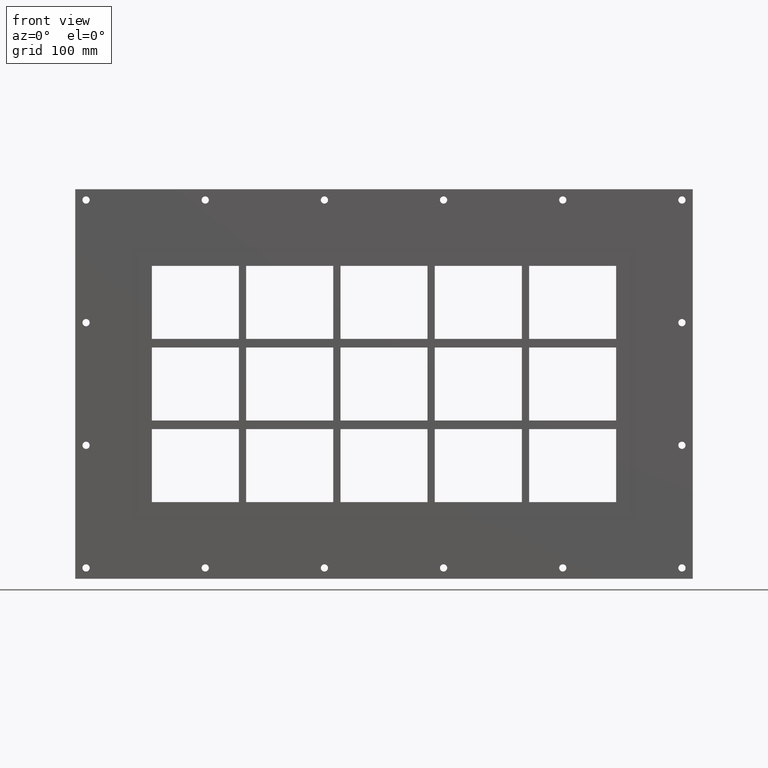
[diagram: clean part render]
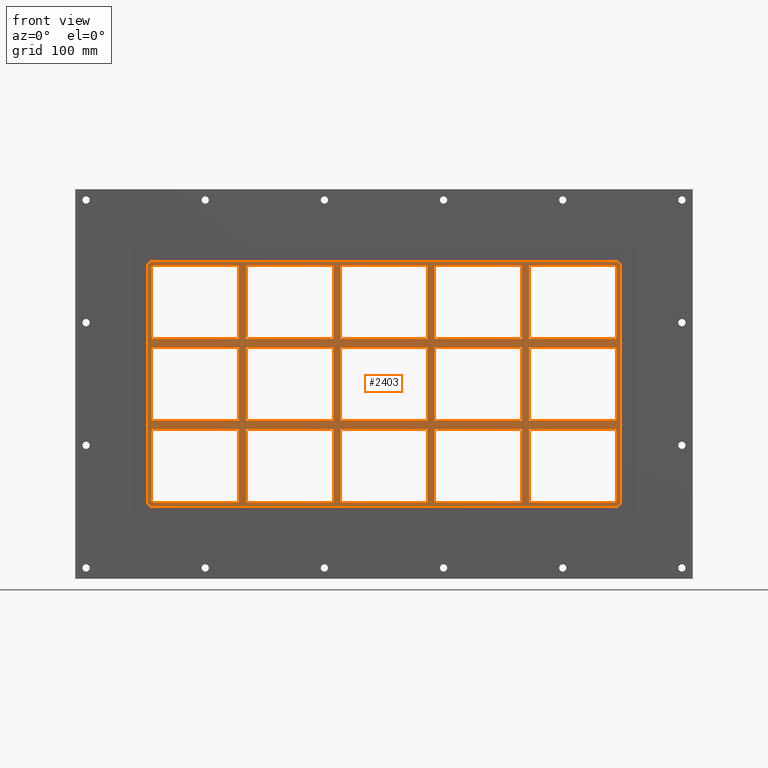
[diagram: same view with one face highlighted and labeled with its STEP entity id]
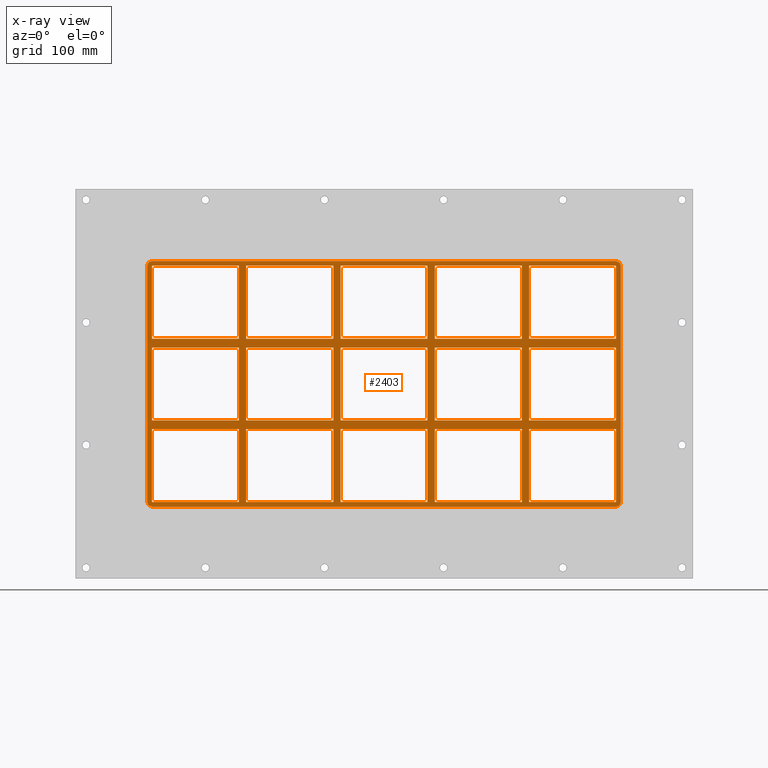
[diagram: x-ray of the same camera — body ghosted, the highlighted face saturated]
A machine part, front view. The second image highlights one B-rep face of the part: STEP entity #2403.
The next image is the same camera in x-ray: the body ghosted, the highlighted face saturated — about 0% of this face is hidden behind the body in this view.
In plain terms, the highlighted planar face has unit normal (0, 1, 0).
Its self-contained STEP definition (entity closure, byte-faithful):
#521=CARTESIAN_POINT('',(-200.75000000000148,-3.0,50.499999999990628));
#522=VERTEX_POINT('',#521);
#531=CARTESIAN_POINT('',(-321.24999999999989,-3.0,50.499999999990628));
#532=VERTEX_POINT('',#531);
#533=CARTESIAN_POINT('',(-200.75000000000148,-3.0,50.499999999990649));
#534=DIRECTION('',(-1.0,0.0,0.0));
#535=VECTOR('',#534,120.49999999999841);
#536=LINE('',#533,#535);
#537=EDGE_CURVE('',#522,#532,#536,.T.);
#561=CARTESIAN_POINT('',(-70.250000000001549,-3.0,50.499999999990671));
#562=VERTEX_POINT('',#561);
#571=CARTESIAN_POINT('',(-190.75000000000728,-3.0,50.499999999990649));
#572=VERTEX_POINT('',#571);
#573=CARTESIAN_POINT('',(-70.250000000001535,-3.0,50.499999999990671));
#574=DIRECTION('',(-1.0,0.0,0.0));
#575=VECTOR('',#574,120.50000000000574);
#576=LINE('',#573,#575);
#577=EDGE_CURVE('',#562,#572,#576,.T.);
#601=CARTESIAN_POINT('',(60.249999999998529,-3.0,50.499999999990699));
#602=VERTEX_POINT('',#601);
#611=CARTESIAN_POINT('',(-60.250000000007304,-3.0,50.499999999990678));
#612=VERTEX_POINT('',#611);
#613=CARTESIAN_POINT('',(60.249999999998522,-3.0,50.499999999990699));
#614=DIRECTION('',(-1.0,0.0,0.0));
#615=VECTOR('',#614,120.5000000000058);
#616=LINE('',#613,#615);
#617=EDGE_CURVE('',#602,#612,#616,.T.);
#643=CARTESIAN_POINT('',(200.74999999999278,-3.0,50.499999999990727));
#644=VERTEX_POINT('',#643);
#659=CARTESIAN_POINT('',(321.25,-3.0,50.499999999990749));
#660=VERTEX_POINT('',#659);
#667=CARTESIAN_POINT('',(321.25,-3.0,50.499999999990749));
#668=DIRECTION('',(-1.0,0.0,0.0));
#669=VECTOR('',#668,120.50000000000722);
#670=LINE('',#667,#669);
#671=EDGE_CURVE('',#660,#644,#670,.T.);
#681=CARTESIAN_POINT('',(190.74999999999852,-3.0,50.499999999990727));
#682=VERTEX_POINT('',#681);
#691=CARTESIAN_POINT('',(70.249999999992738,-3.0,50.499999999990706));
#692=VERTEX_POINT('',#691);
#693=CARTESIAN_POINT('',(190.74999999999852,-3.0,50.49999999999072));
#694=DIRECTION('',(-1.0,0.0,0.0));
#695=VECTOR('',#694,120.5000000000058);
#696=LINE('',#693,#695);
#697=EDGE_CURVE('',#682,#692,#696,.T.);
#723=CARTESIAN_POINT('',(-200.75000000000148,-3.0,62.499999999999893));
#724=VERTEX_POINT('',#723);
#739=CARTESIAN_POINT('',(-321.24999999999989,-3.0,62.499999999999893));
#740=VERTEX_POINT('',#739);
#747=CARTESIAN_POINT('',(-321.24999999999989,-3.0,62.499999999999893));
#748=DIRECTION('',(1.0,0.0,0.0));
#749=VECTOR('',#748,120.49999999999838);
#750=LINE('',#747,#749);
#751=EDGE_CURVE('',#740,#724,#750,.T.);
#761=CARTESIAN_POINT('',(200.74999999999278,-3.0,62.499999999999893));
#762=VERTEX_POINT('',#761);
#771=CARTESIAN_POINT('',(321.25000000000006,-3.0,62.499999999999893));
#772=VERTEX_POINT('',#771);
#773=CARTESIAN_POINT('',(200.74999999999272,-3.0,62.499999999999893));
#774=DIRECTION('',(1.0,0.0,0.0));
#775=VECTOR('',#774,120.50000000000739);
#776=LINE('',#773,#775);
#777=EDGE_CURVE('',#762,#772,#776,.T.);
#803=CARTESIAN_POINT('',(-70.250000000001478,-3.0,62.499999999999893));
#804=VERTEX_POINT('',#803);
#819=CARTESIAN_POINT('',(-190.75000000000728,-3.0,62.499999999999893));
#820=VERTEX_POINT('',#819);
#827=CARTESIAN_POINT('',(-190.7500000000073,-3.0,62.499999999999893));
#828=DIRECTION('',(1.0,0.0,0.0));
#829=VECTOR('',#828,120.5000000000058);
#830=LINE('',#827,#829);
#831=EDGE_CURVE('',#820,#804,#830,.T.);
#843=CARTESIAN_POINT('',(60.249999999998494,-3.0,62.499999999999893));
#844=VERTEX_POINT('',#843);
#859=CARTESIAN_POINT('',(-60.250000000007269,-3.0,62.499999999999893));
#860=VERTEX_POINT('',#859);
#867=CARTESIAN_POINT('',(-60.250000000007276,-3.0,62.499999999999893));
#868=DIRECTION('',(1.0,0.0,0.0));
#869=VECTOR('',#868,120.50000000000574);
#870=LINE('',#867,#869);
#871=EDGE_CURVE('',#860,#844,#870,.T.);
#883=CARTESIAN_POINT('',(190.74999999999852,-3.0,62.499999999999893));
#884=VERTEX_POINT('',#883);
#899=CARTESIAN_POINT('',(70.249999999992738,-3.0,62.499999999999893));
#900=VERTEX_POINT('',#899);
#907=CARTESIAN_POINT('',(70.249999999992724,-3.0,62.499999999999893));
#908=DIRECTION('',(1.0,0.0,0.0));
#909=VECTOR('',#908,120.5000000000058);
#910=LINE('',#907,#909);
#911=EDGE_CURVE('',#900,#884,#910,.T.);
#930=CARTESIAN_POINT('',(-321.25000000000011,-3.0,163.5));
#931=VERTEX_POINT('',#930);
#938=CARTESIAN_POINT('',(-321.25000000000006,-3.0,62.499999999999886));
#939=DIRECTION('',(0.0,0.0,1.0));
#940=VECTOR('',#939,101.00000000000014);
#941=LINE('',#938,#940);
#942=EDGE_CURVE('',#740,#931,#941,.T.);
#961=CARTESIAN_POINT('',(321.25000000000006,-3.0,-50.500000000000114));
#962=VERTEX_POINT('',#961);
#969=CARTESIAN_POINT('',(321.25000000000011,-3.0,50.499999999990749));
#970=DIRECTION('',(0.0,0.0,-1.0));
#971=VECTOR('',#970,100.99999999999086);
#972=LINE('',#969,#971);
#973=EDGE_CURVE('',#660,#962,#972,.T.);
#984=CARTESIAN_POINT('',(321.25000000000011,-3.0,163.5));
#985=VERTEX_POINT('',#984);
#986=CARTESIAN_POINT('',(321.25000000000011,-3.0,163.5));
#987=DIRECTION('',(0.0,0.0,-1.0));
#988=VECTOR('',#987,101.00000000000011);
#989=LINE('',#986,#988);
#990=EDGE_CURVE('',#985,#772,#989,.T.);
#1015=CARTESIAN_POINT('',(190.74999999999852,-3.0,163.5));
#1016=VERTEX_POINT('',#1015);
#1017=CARTESIAN_POINT('',(190.74999999999855,-3.0,62.499999999999915));
#1018=DIRECTION('',(0.0,0.0,1.0));
#1019=VECTOR('',#1018,101.00000000000009);
#1020=LINE('',#1017,#1019);
#1021=EDGE_CURVE('',#884,#1016,#1020,.T.);
#1054=CARTESIAN_POINT('',(200.74999999999278,-3.0,163.5));
#1055=VERTEX_POINT('',#1054);
#1062=CARTESIAN_POINT('',(200.74999999999278,-3.0,163.5));
#1063=DIRECTION('',(0.0,0.0,-1.0));
#1064=VECTOR('',#1063,101.00000000000011);
#1065=LINE('',#1062,#1064);
#1066=EDGE_CURVE('',#1055,#762,#1065,.T.);
#1077=CARTESIAN_POINT('',(60.249999999998494,-3.0,163.5));
#1078=VERTEX_POINT('',#1077);
#1079=CARTESIAN_POINT('',(60.249999999998515,-3.0,62.499999999999915));
#1080=DIRECTION('',(0.0,0.0,1.0));
#1081=VECTOR('',#1080,101.00000000000009);
#1082=LINE('',#1079,#1081);
#1083=EDGE_CURVE('',#844,#1078,#1082,.T.);
#1116=CARTESIAN_POINT('',(70.249999999992738,-3.0,163.5));
#1117=VERTEX_POINT('',#1116);
#1124=CARTESIAN_POINT('',(70.249999999992738,-3.0,163.5));
#1125=DIRECTION('',(0.0,0.0,-1.0));
#1126=VECTOR('',#1125,101.00000000000011);
#1127=LINE('',#1124,#1126);
#1128=EDGE_CURVE('',#1117,#900,#1127,.T.);
#1139=CARTESIAN_POINT('',(-70.250000000001506,-3.0,163.5));
#1140=VERTEX_POINT('',#1139);
#1141=CARTESIAN_POINT('',(-70.250000000001492,-3.0,62.499999999999915));
#1142=DIRECTION('',(0.0,0.0,1.0));
#1143=VECTOR('',#1142,101.00000000000009);
#1144=LINE('',#1141,#1143);
#1145=EDGE_CURVE('',#804,#1140,#1144,.T.);
#1178=CARTESIAN_POINT('',(-60.250000000007269,-3.0,163.5));
#1179=VERTEX_POINT('',#1178);
#1186=CARTESIAN_POINT('',(-60.250000000007269,-3.0,163.5));
#1187=DIRECTION('',(0.0,0.0,-1.0));
#1188=VECTOR('',#1187,101.00000000000011);
#1189=LINE('',#1186,#1188);
#1190=EDGE_CURVE('',#1179,#860,#1189,.T.);
#1201=CARTESIAN_POINT('',(-200.75000000000153,-3.0,163.5));
#1202=VERTEX_POINT('',#1201);
#1203=CARTESIAN_POINT('',(-200.75000000000151,-3.0,62.499999999999915));
#1204=DIRECTION('',(0.0,0.0,1.0));
#1205=VECTOR('',#1204,101.00000000000009);
#1206=LINE('',#1203,#1205);
#1207=EDGE_CURVE('',#724,#1202,#1206,.T.);
#1240=CARTESIAN_POINT('',(-200.75000000000145,-3.0,-50.500000000000114));
#1241=VERTEX_POINT('',#1240);
#1248=CARTESIAN_POINT('',(-200.75000000000148,-3.0,-50.500000000000099));
#1249=DIRECTION('',(0.0,0.0,1.0));
#1250=VECTOR('',#1249,100.99999999999075);
#1251=LINE('',#1248,#1250);
#1252=EDGE_CURVE('',#1241,#522,#1251,.T.);
#1271=CARTESIAN_POINT('',(-190.75000000000728,-3.0,163.5));
#1272=VERTEX_POINT('',#1271);
#1279=CARTESIAN_POINT('',(-190.75000000000728,-3.0,163.5));
#1280=DIRECTION('',(0.0,0.0,-1.0));
#1281=VECTOR('',#1280,101.00000000000011);
#1282=LINE('',#1279,#1281);
#1283=EDGE_CURVE('',#1272,#820,#1282,.T.);
#1707=CARTESIAN_POINT('',(190.74999999999858,-3.0,-50.500000000000114));
#1708=VERTEX_POINT('',#1707);
#1715=CARTESIAN_POINT('',(190.74999999999858,-3.0,-50.500000000000099));
#1716=DIRECTION('',(0.0,0.0,1.0));
#1717=VECTOR('',#1716,100.99999999999083);
#1718=LINE('',#1715,#1717);
#1719=EDGE_CURVE('',#1708,#682,#1718,.T.);
#1729=CARTESIAN_POINT('',(190.74999999999858,-3.0,-62.500000000009273));
#1730=VERTEX_POINT('',#1729);
#1738=CARTESIAN_POINT('',(190.74999999999861,-3.0,-163.5));
#1739=VERTEX_POINT('',#1738);
#1746=CARTESIAN_POINT('',(190.74999999999861,-3.0,-163.5));
#1747=DIRECTION('',(0.0,0.0,1.0));
#1748=VECTOR('',#1747,100.99999999999073);
#1749=LINE('',#1746,#1748);
#1750=EDGE_CURVE('',#1739,#1730,#1749,.T.);
#1761=CARTESIAN_POINT('',(200.74999999999278,-3.0,-50.500000000000114));
#1762=VERTEX_POINT('',#1761);
#1763=CARTESIAN_POINT('',(200.74999999999278,-3.0,50.49999999999072));
#1764=DIRECTION('',(0.0,0.0,-1.0));
#1765=VECTOR('',#1764,100.99999999999083);
#1766=LINE('',#1763,#1765);
#1767=EDGE_CURVE('',#644,#1762,#1766,.T.);
#1784=CARTESIAN_POINT('',(200.74999999999278,-3.0,-62.500000000009273));
#1785=VERTEX_POINT('',#1784);
#1792=CARTESIAN_POINT('',(200.74999999999278,-3.0,-163.49999999998428));
#1793=VERTEX_POINT('',#1792);
#1794=CARTESIAN_POINT('',(200.74999999999278,-3.0,-62.500000000009294));
#1795=DIRECTION('',(0.0,0.0,-1.0));
#1796=VECTOR('',#1795,100.99999999997496);
#1797=LINE('',#1794,#1796);
#1798=EDGE_CURVE('',#1785,#1793,#1797,.T.);
#1817=CARTESIAN_POINT('',(60.249999999998536,-3.0,-50.500000000000114));
#1818=VERTEX_POINT('',#1817);
#1825=CARTESIAN_POINT('',(60.249999999998543,-3.0,-50.500000000000099));
#1826=DIRECTION('',(0.0,0.0,1.0));
#1827=VECTOR('',#1826,100.99999999999081);
#1828=LINE('',#1825,#1827);
#1829=EDGE_CURVE('',#1818,#602,#1828,.T.);
#1839=CARTESIAN_POINT('',(60.24999999999855,-3.0,-62.500000000009308));
#1840=VERTEX_POINT('',#1839);
#1848=CARTESIAN_POINT('',(60.249999999998565,-3.0,-163.5));
#1849=VERTEX_POINT('',#1848);
#1856=CARTESIAN_POINT('',(60.249999999998565,-3.0,-163.5));
#1857=DIRECTION('',(0.0,0.0,1.0));
#1858=VECTOR('',#1857,100.99999999999071);
#1859=LINE('',#1856,#1858);
#1860=EDGE_CURVE('',#1849,#1840,#1859,.T.);
#1871=CARTESIAN_POINT('',(70.249999999992738,-3.0,-50.500000000000114));
#1872=VERTEX_POINT('',#1871);
#1873=CARTESIAN_POINT('',(70.249999999992738,-3.0,50.499999999990678));
#1874=DIRECTION('',(0.0,0.0,-1.0));
#1875=VECTOR('',#1874,100.99999999999079);
#1876=LINE('',#1873,#1875);
#1877=EDGE_CURVE('',#692,#1872,#1876,.T.);
#1894=CARTESIAN_POINT('',(70.249999999992738,-3.0,-62.500000000009273));
#1895=VERTEX_POINT('',#1894);
#1902=CARTESIAN_POINT('',(70.249999999992738,-3.0,-163.49999999998428));
#1903=VERTEX_POINT('',#1902);
#1904=CARTESIAN_POINT('',(70.249999999992738,-3.0,-62.500000000009294));
#1905=DIRECTION('',(0.0,0.0,-1.0));
#1906=VECTOR('',#1905,100.99999999997496);
#1907=LINE('',#1904,#1906);
#1908=EDGE_CURVE('',#1895,#1903,#1907,.T.);
#1927=CARTESIAN_POINT('',(-70.250000000001464,-3.0,-50.500000000000114));
#1928=VERTEX_POINT('',#1927);
#1935=CARTESIAN_POINT('',(-70.250000000001478,-3.0,-50.500000000000099));
#1936=DIRECTION('',(0.0,0.0,1.0));
#1937=VECTOR('',#1936,100.99999999999078);
#1938=LINE('',#1935,#1937);
#1939=EDGE_CURVE('',#1928,#562,#1938,.T.);
#1949=CARTESIAN_POINT('',(-70.250000000001464,-3.0,-62.500000000009322));
#1950=VERTEX_POINT('',#1949);
#1958=CARTESIAN_POINT('',(-70.25000000000145,-3.0,-163.5));
#1959=VERTEX_POINT('',#1958);
#1966=CARTESIAN_POINT('',(-70.25000000000145,-3.0,-163.5));
#1967=DIRECTION('',(0.0,0.0,1.0));
#1968=VECTOR('',#1967,100.99999999999069);
#1969=LINE('',#1966,#1968);
#1970=EDGE_CURVE('',#1959,#1950,#1969,.T.);
#1981=CARTESIAN_POINT('',(-60.250000000007269,-3.0,-50.500000000000114));
#1982=VERTEX_POINT('',#1981);
#1983=CARTESIAN_POINT('',(-60.250000000007269,-3.0,50.499999999990663));
#1984=DIRECTION('',(0.0,0.0,-1.0));
#1985=VECTOR('',#1984,100.99999999999078);
#1986=LINE('',#1983,#1985);
#1987=EDGE_CURVE('',#612,#1982,#1986,.T.);
#2004=CARTESIAN_POINT('',(-60.250000000007269,-3.0,-62.500000000009308));
#2005=VERTEX_POINT('',#2004);
#2012=CARTESIAN_POINT('',(-60.250000000007269,-3.0,-163.49999999998428));
#2013=VERTEX_POINT('',#2012);
#2014=CARTESIAN_POINT('',(-60.250000000007269,-3.0,-62.500000000009322));
#2015=DIRECTION('',(0.0,0.0,-1.0));
#2016=VECTOR('',#2015,100.99999999997493);
#2017=LINE('',#2014,#2016);
#2018=EDGE_CURVE('',#2005,#2013,#2017,.T.);
#2037=CARTESIAN_POINT('',(-190.75000000000728,-3.0,-163.49999999998428));
#2038=VERTEX_POINT('',#2037);
#2045=CARTESIAN_POINT('',(-70.25000000000145,-3.0,-163.5));
#2046=DIRECTION('',(-1.0,0.0,0.0));
#2047=VECTOR('',#2046,120.5000000000058);
#2048=LINE('',#2045,#2047);
#2049=EDGE_CURVE('',#1959,#2038,#2048,.T.);
#2062=CARTESIAN_POINT('',(60.24999999999855,-3.0,-163.5));
#2063=DIRECTION('',(-1.0,0.0,0.0));
#2064=VECTOR('',#2063,120.50000000000583);
#2065=LINE('',#2062,#2064);
#2066=EDGE_CURVE('',#1849,#2013,#2065,.T.);
#2079=CARTESIAN_POINT('',(190.74999999999861,-3.0,-163.5));
#2080=DIRECTION('',(-1.0,0.0,0.0));
#2081=VECTOR('',#2080,120.50000000000588);
#2082=LINE('',#2079,#2081);
#2083=EDGE_CURVE('',#1739,#1903,#2082,.T.);
#2094=CARTESIAN_POINT('',(321.25000000000011,-3.0,-163.5));
#2095=VERTEX_POINT('',#2094);
#2096=CARTESIAN_POINT('',(321.25000000000011,-3.0,-163.5));
#2097=DIRECTION('',(-1.0,0.0,0.0));
#2098=VECTOR('',#2097,120.50000000000733);
#2099=LINE('',#2096,#2098);
#2100=EDGE_CURVE('',#2095,#1793,#2099,.T.);
#2112=CARTESIAN_POINT('',(-7.489843E-014,-3.0,0.0));
#2113=DIRECTION('',(0.0,1.0,0.0));
#2114=DIRECTION('',(0.0,0.0,1.0));
#2115=AXIS2_PLACEMENT_3D('',#2112,#2113,#2114);
#2116=PLANE('',#2115);
#2117=CARTESIAN_POINT('',(327.24999999999994,-3.0,-163.5));
#2118=VERTEX_POINT('',#2117);
#2119=CARTESIAN_POINT('',(321.25,-3.0,-169.50000000000003));
#2120=VERTEX_POINT('',#2119);
#2121=CARTESIAN_POINT('',(321.25,-3.0,-163.5));
#2122=DIRECTION('',(0.0,1.0,0.0));
#2123=DIRECTION('',(0.707106781186543,0.0,-0.707106781186552));
#2124=AXIS2_PLACEMENT_3D('',#2121,#2122,#2123);
#2125=CIRCLE('',#2124,6.000000000000001);
#2126=EDGE_CURVE('',#2118,#2120,#2125,.T.);
#2127=ORIENTED_EDGE('',*,*,#2126,.F.);
#2128=CARTESIAN_POINT('',(327.24999999999994,-3.0,163.5));
#2129=VERTEX_POINT('',#2128);
#2130=CARTESIAN_POINT('',(327.24999999999994,-3.0,-163.50000000000003));
#2131=DIRECTION('',(0.0,0.0,1.0));
#2132=VECTOR('',#2131,327.0);
#2133=LINE('',#2130,#2132);
#2134=EDGE_CURVE('',#2118,#2129,#2133,.T.);
#2135=ORIENTED_EDGE('',*,*,#2134,.T.);
#2136=CARTESIAN_POINT('',(321.24999999999989,-3.0,169.50000000000003));
#2137=VERTEX_POINT('',#2136);
#2138=CARTESIAN_POINT('',(321.24999999999989,-3.0,163.5));
#2139=DIRECTION('',(0.0,1.0,0.0));
#2140=DIRECTION('',(0.707106781186552,0.0,0.707106781186543));
#2141=AXIS2_PLACEMENT_3D('',#2138,#2139,#2140);
#2142=CIRCLE('',#2141,6.0);
#2143=EDGE_CURVE('',#2137,#2129,#2142,.T.);
#2144=ORIENTED_EDGE('',*,*,#2143,.F.);
#2145=CARTESIAN_POINT('',(-321.25000000000011,-3.0,169.50000000000003));
#2146=VERTEX_POINT('',#2145);
#2147=CARTESIAN_POINT('',(321.24999999999989,-3.0,169.50000000000003));
#2148=DIRECTION('',(-1.0,0.0,0.0));
#2149=VECTOR('',#2148,642.5);
#2150=LINE('',#2147,#2149);
#2151=EDGE_CURVE('',#2137,#2146,#2150,.T.);
#2152=ORIENTED_EDGE('',*,*,#2151,.T.);
#2153=CARTESIAN_POINT('',(-327.25000000000011,-3.0,163.5));
#2154=VERTEX_POINT('',#2153);
#2155=CARTESIAN_POINT('',(-321.25000000000011,-3.0,163.5));
#2156=DIRECTION('',(0.0,1.0,0.0));
#2157=DIRECTION('',(-0.707106781186543,0.0,0.707106781186552));
#2158=AXIS2_PLACEMENT_3D('',#2155,#2156,#2157);
#2159=CIRCLE('',#2158,6.000000000000001);
#2160=EDGE_CURVE('',#2154,#2146,#2159,.T.);
#2161=ORIENTED_EDGE('',*,*,#2160,.F.);
#2162=CARTESIAN_POINT('',(-327.25000000000011,-3.0,-163.5));
#2163=VERTEX_POINT('',#2162);
#2164=CARTESIAN_POINT('',(-327.25000000000011,-3.0,163.50000000000003));
#2165=DIRECTION('',(0.0,0.0,-1.0));
#2166=VECTOR('',#2165,327.0);
#2167=LINE('',#2164,#2166);
#2168=EDGE_CURVE('',#2154,#2163,#2167,.T.);
#2169=ORIENTED_EDGE('',*,*,#2168,.T.);
#2170=CARTESIAN_POINT('',(-321.25,-3.0,-169.50000000000003));
#2171=VERTEX_POINT('',#2170);
#2172=CARTESIAN_POINT('',(-321.25,-3.0,-163.5));
#2173=DIRECTION('',(0.0,1.0,0.0));
#2174=DIRECTION('',(-0.707106781186552,0.0,-0.707106781186543));
#2175=AXIS2_PLACEMENT_3D('',#2172,#2173,#2174);
#2176=CIRCLE('',#2175,6.0);
#2177=EDGE_CURVE('',#2171,#2163,#2176,.T.);
#2178=ORIENTED_EDGE('',*,*,#2177,.F.);
#2179=CARTESIAN_POINT('',(-321.25000000000006,-3.0,-169.50000000000003));
#2180=DIRECTION('',(1.0,0.0,0.0));
#2181=VECTOR('',#2180,642.5);
#2182=LINE('',#2179,#2181);
#2183=EDGE_CURVE('',#2171,#2120,#2182,.T.);
#2184=ORIENTED_EDGE('',*,*,#2183,.T.);
#2185=EDGE_LOOP('',(#2127,#2135,#2144,#2152,#2161,#2169,#2178,#2184));
#2186=FACE_OUTER_BOUND('',#2185,.T.);
#2187=ORIENTED_EDGE('',*,*,#942,.T.);
#2188=CARTESIAN_POINT('',(-321.25000000000011,-3.0,163.5));
#2189=DIRECTION('',(1.0,0.0,0.0));
#2190=VECTOR('',#2189,120.49999999999861);
#2191=LINE('',#2188,#2190);
#2192=EDGE_CURVE('',#931,#1202,#2191,.T.);
#2193=ORIENTED_EDGE('',*,*,#2192,.T.);
#2194=ORIENTED_EDGE('',*,*,#1207,.F.);
#2195=ORIENTED_EDGE('',*,*,#751,.F.);
#2196=EDGE_LOOP('',(#2187,#2193,#2194,#2195));
#2197=FACE_BOUND('',#2196,.T.);
#2198=ORIENTED_EDGE('',*,*,#973,.T.);
#2199=CARTESIAN_POINT('',(200.74999999999272,-3.0,-50.500000000000114));
#2200=DIRECTION('',(1.0,0.0,0.0));
#2201=VECTOR('',#2200,120.50000000000739);
#2202=LINE('',#2199,#2201);
#2203=EDGE_CURVE('',#1762,#962,#2202,.T.);
#2204=ORIENTED_EDGE('',*,*,#2203,.F.);
#2205=ORIENTED_EDGE('',*,*,#1767,.F.);
#2206=ORIENTED_EDGE('',*,*,#671,.F.);
#2207=EDGE_LOOP('',(#2198,#2204,#2205,#2206));
#2208=FACE_BOUND('',#2207,.T.);
#2209=ORIENTED_EDGE('',*,*,#1719,.F.);
#2210=CARTESIAN_POINT('',(70.249999999992724,-3.0,-50.500000000000114));
#2211=DIRECTION('',(1.0,0.0,0.0));
#2212=VECTOR('',#2211,120.50000000000585);
#2213=LINE('',#2210,#2212);
#2214=EDGE_CURVE('',#1872,#1708,#2213,.T.);
#2215=ORIENTED_EDGE('',*,*,#2214,.F.);
#2216=ORIENTED_EDGE('',*,*,#1877,.F.);
#2217=ORIENTED_EDGE('',*,*,#697,.F.);
#2218=EDGE_LOOP('',(#2209,#2215,#2216,#2217));
#2219=FACE_BOUND('',#2218,.T.);
#2220=ORIENTED_EDGE('',*,*,#1829,.F.);
#2221=CARTESIAN_POINT('',(-60.250000000007276,-3.0,-50.500000000000114));
#2222=DIRECTION('',(1.0,0.0,0.0));
#2223=VECTOR('',#2222,120.5000000000058);
#2224=LINE('',#2221,#2223);
#2225=EDGE_CURVE('',#1982,#1818,#2224,.T.);
#2226=ORIENTED_EDGE('',*,*,#2225,.F.);
#2227=ORIENTED_EDGE('',*,*,#1987,.F.);
#2228=ORIENTED_EDGE('',*,*,#617,.F.);
#2229=EDGE_LOOP('',(#2220,#2226,#2227,#2228));
#2230=FACE_BOUND('',#2229,.T.);
#2231=ORIENTED_EDGE('',*,*,#1939,.F.);
#2232=CARTESIAN_POINT('',(-190.75000000000728,-3.0,-50.500000000000114));
#2233=VERTEX_POINT('',#2232);
#2234=CARTESIAN_POINT('',(-190.7500000000073,-3.0,-50.500000000000114));
#2235=DIRECTION('',(1.0,0.0,0.0));
#2236=VECTOR('',#2235,120.5000000000058);
#2237=LINE('',#2234,#2236);
#2238=EDGE_CURVE('',#2233,#1928,#2237,.T.);
#2239=ORIENTED_EDGE('',*,*,#2238,.F.);
#2240=CARTESIAN_POINT('',(-190.75000000000728,-3.0,50.499999999990635));
#2241=DIRECTION('',(0.0,0.0,-1.0));
#2242=VECTOR('',#2241,100.99999999999075);
#2243=LINE('',#2240,#2242);
#2244=EDGE_CURVE('',#572,#2233,#2243,.T.);
#2245=ORIENTED_EDGE('',*,*,#2244,.F.);
#2246=ORIENTED_EDGE('',*,*,#577,.F.);
#2247=EDGE_LOOP('',(#2231,#2239,#2245,#2246));
#2248=FACE_BOUND('',#2247,.T.);
#2249=ORIENTED_EDGE('',*,*,#911,.F.);
#2250=ORIENTED_EDGE('',*,*,#1128,.F.);
#2251=CARTESIAN_POINT('',(70.249999999992752,-3.0,163.5));
#2252=DIRECTION('',(1.0,0.0,0.0));
#2253=VECTOR('',#2252,120.50000000000583);
#2254=LINE('',#2251,#2253);
#2255=EDGE_CURVE('',#1117,#1016,#2254,.T.);
#2256=ORIENTED_EDGE('',*,*,#2255,.T.);
#2257=ORIENTED_EDGE('',*,*,#1021,.F.);
#2258=EDGE_LOOP('',(#2249,#2250,#2256,#2257));
#2259=FACE_BOUND('',#2258,.T.);
#2260=ORIENTED_EDGE('',*,*,#871,.F.);
#2261=ORIENTED_EDGE('',*,*,#1190,.F.);
#2262=CARTESIAN_POINT('',(-60.250000000007248,-3.0,163.5));
#2263=DIRECTION('',(1.0,0.0,0.0));
#2264=VECTOR('',#2263,120.50000000000577);
#2265=LINE('',#2262,#2264);
#2266=EDGE_CURVE('',#1179,#1078,#2265,.T.);
#2267=ORIENTED_EDGE('',*,*,#2266,.T.);
#2268=ORIENTED_EDGE('',*,*,#1083,.F.);
#2269=EDGE_LOOP('',(#2260,#2261,#2267,#2268));
#2270=FACE_BOUND('',#2269,.T.);
#2271=ORIENTED_EDGE('',*,*,#831,.F.);
#2272=ORIENTED_EDGE('',*,*,#1283,.F.);
#2273=CARTESIAN_POINT('',(-190.75000000000728,-3.0,163.5));
#2274=DIRECTION('',(1.0,0.0,0.0));
#2275=VECTOR('',#2274,120.50000000000577);
#2276=LINE('',#2273,#2275);
#2277=EDGE_CURVE('',#1272,#1140,#2276,.T.);
#2278=ORIENTED_EDGE('',*,*,#2277,.T.);
#2279=ORIENTED_EDGE('',*,*,#1145,.F.);
#2280=EDGE_LOOP('',(#2271,#2272,#2278,#2279));
#2281=FACE_BOUND('',#2280,.T.);
#2282=ORIENTED_EDGE('',*,*,#537,.F.);
#2283=ORIENTED_EDGE('',*,*,#1252,.F.);
#2284=CARTESIAN_POINT('',(-321.24999999999989,-3.0,-50.500000000000114));
#2285=VERTEX_POINT('',#2284);
#2286=CARTESIAN_POINT('',(-321.24999999999989,-3.0,-50.500000000000114));
#2287=DIRECTION('',(1.0,0.0,0.0));
#2288=VECTOR('',#2287,120.49999999999841);
#2289=LINE('',#2286,#2288);
#2290=EDGE_CURVE('',#2285,#1241,#2289,.T.);
#2291=ORIENTED_EDGE('',*,*,#2290,.F.);
#2292=CARTESIAN_POINT('',(-321.25000000000006,-3.0,-50.500000000000107));
#2293=DIRECTION('',(0.0,0.0,1.0));
#2294=VECTOR('',#2293,100.99999999999073);
#2295=LINE('',#2292,#2294);
#2296=EDGE_CURVE('',#2285,#532,#2295,.T.);
#2297=ORIENTED_EDGE('',*,*,#2296,.T.);
#2298=EDGE_LOOP('',(#2282,#2283,#2291,#2297));
#2299=FACE_BOUND('',#2298,.T.);
#2300=ORIENTED_EDGE('',*,*,#777,.F.);
#2301=ORIENTED_EDGE('',*,*,#1066,.F.);
#2302=CARTESIAN_POINT('',(200.74999999999278,-3.0,163.5));
#2303=DIRECTION('',(1.0,0.0,0.0));
#2304=VECTOR('',#2303,120.50000000000739);
#2305=LINE('',#2302,#2304);
#2306=EDGE_CURVE('',#1055,#985,#2305,.T.);
#2307=ORIENTED_EDGE('',*,*,#2306,.T.);
#2308=ORIENTED_EDGE('',*,*,#990,.T.);
#2309=EDGE_LOOP('',(#2300,#2301,#2307,#2308));
#2310=FACE_BOUND('',#2309,.T.);
#2311=ORIENTED_EDGE('',*,*,#2083,.T.);
#2312=ORIENTED_EDGE('',*,*,#1908,.F.);
#2313=CARTESIAN_POINT('',(190.74999999999858,-3.0,-62.50000000000928));
#2314=DIRECTION('',(-1.0,0.0,0.0));
#2315=VECTOR('',#2314,120.50000000000585);
#2316=LINE('',#2313,#2315);
#2317=EDGE_CURVE('',#1730,#1895,#2316,.T.);
#2318=ORIENTED_EDGE('',*,*,#2317,.F.);
#2319=ORIENTED_EDGE('',*,*,#1750,.F.);
#2320=EDGE_LOOP('',(#2311,#2312,#2318,#2319));
#2321=FACE_BOUND('',#2320,.T.);
#2322=ORIENTED_EDGE('',*,*,#2066,.T.);
#2323=ORIENTED_EDGE('',*,*,#2018,.F.);
#2324=CARTESIAN_POINT('',(60.249999999998579,-3.0,-62.500000000009301));
#2325=DIRECTION('',(-1.0,0.0,0.0));
#2326=VECTOR('',#2325,120.50000000000585);
#2327=LINE('',#2324,#2326);
#2328=EDGE_CURVE('',#1840,#2005,#2327,.T.);
#2329=ORIENTED_EDGE('',*,*,#2328,.F.);
#2330=ORIENTED_EDGE('',*,*,#1860,.F.);
#2331=EDGE_LOOP('',(#2322,#2323,#2329,#2330));
#2332=FACE_BOUND('',#2331,.T.);
#2333=ORIENTED_EDGE('',*,*,#2049,.T.);
#2334=CARTESIAN_POINT('',(-190.75000000000728,-3.0,-62.500000000009351));
#2335=VERTEX_POINT('',#2334);
#2336=CARTESIAN_POINT('',(-190.75000000000728,-3.0,-62.500000000009351));
#2337=DIRECTION('',(0.0,0.0,-1.0));
#2338=VECTOR('',#2337,100.9999999999749);
#2339=LINE('',#2336,#2338);
#2340=EDGE_CURVE('',#2335,#2038,#2339,.T.);
#2341=ORIENTED_EDGE('',*,*,#2340,.F.);
#2342=CARTESIAN_POINT('',(-70.250000000001478,-3.0,-62.500000000009329));
#2343=DIRECTION('',(-1.0,0.0,0.0));
#2344=VECTOR('',#2343,120.5000000000058);
#2345=LINE('',#2342,#2344);
#2346=EDGE_CURVE('',#1950,#2335,#2345,.T.);
#2347=ORIENTED_EDGE('',*,*,#2346,.F.);
#2348=ORIENTED_EDGE('',*,*,#1970,.F.);
#2349=EDGE_LOOP('',(#2333,#2341,#2347,#2348));
#2350=FACE_BOUND('',#2349,.T.);
#2351=ORIENTED_EDGE('',*,*,#1798,.F.);
#2352=CARTESIAN_POINT('',(321.25,-3.0,-62.500000000009251));
#2353=VERTEX_POINT('',#2352);
#2354=CARTESIAN_POINT('',(321.25,-3.0,-62.500000000009251));
#2355=DIRECTION('',(-1.0,0.0,0.0));
#2356=VECTOR('',#2355,120.50000000000722);
#2357=LINE('',#2354,#2356);
#2358=EDGE_CURVE('',#2353,#1785,#2357,.T.);
#2359=ORIENTED_EDGE('',*,*,#2358,.F.);
#2360=CARTESIAN_POINT('',(321.25000000000011,-3.0,-62.500000000009265));
#2361=DIRECTION('',(0.0,0.0,-1.0));
#2362=VECTOR('',#2361,100.99999999999076);
#2363=LINE('',#2360,#2362);
#2364=EDGE_CURVE('',#2353,#2095,#2363,.T.);
#2365=ORIENTED_EDGE('',*,*,#2364,.T.);
#2366=ORIENTED_EDGE('',*,*,#2100,.T.);
#2367=EDGE_LOOP('',(#2351,#2359,#2365,#2366));
#2368=FACE_BOUND('',#2367,.T.);
#2369=CARTESIAN_POINT('',(-200.75000000000145,-3.0,-62.500000000009351));
#2370=VERTEX_POINT('',#2369);
#2371=CARTESIAN_POINT('',(-321.24999999999989,-3.0,-62.500000000009379));
#2372=VERTEX_POINT('',#2371);
#2373=CARTESIAN_POINT('',(-200.75000000000148,-3.0,-62.500000000009351));
#2374=DIRECTION('',(-1.0,0.0,0.0));
#2375=VECTOR('',#2374,120.49999999999841);
#2376=LINE('',#2373,#2375);
#2377=EDGE_CURVE('',#2370,#2372,#2376,.T.);
#2378=ORIENTED_EDGE('',*,*,#2377,.F.);
#2379=CARTESIAN_POINT('',(-200.75000000000145,-3.0,-163.5));
#2380=VERTEX_POINT('',#2379);
#2381=CARTESIAN_POINT('',(-200.75000000000145,-3.0,-163.5));
#2382=DIRECTION('',(0.0,0.0,1.0));
#2383=VECTOR('',#2382,100.99999999999068);
#2384=LINE('',#2381,#2383);
#2385=EDGE_CURVE('',#2380,#2370,#2384,.T.);
#2386=ORIENTED_EDGE('',*,*,#2385,.F.);
#2387=CARTESIAN_POINT('',(-321.25000000000011,-3.0,-163.5));
#2388=VERTEX_POINT('',#2387);
#2389=CARTESIAN_POINT('',(-200.75000000000145,-3.0,-163.5));
#2390=DIRECTION('',(-1.0,0.0,0.0));
#2391=VECTOR('',#2390,120.49999999999866);
#2392=LINE('',#2389,#2391);
#2393=EDGE_CURVE('',#2380,#2388,#2392,.T.);
#2394=ORIENTED_EDGE('',*,*,#2393,.T.);
#2395=CARTESIAN_POINT('',(-321.25000000000006,-3.0,-163.5));
#2396=DIRECTION('',(0.0,0.0,1.0));
#2397=VECTOR('',#2396,100.99999999999062);
#2398=LINE('',#2395,#2397);
#2399=EDGE_CURVE('',#2388,#2372,#2398,.T.);
#2400=ORIENTED_EDGE('',*,*,#2399,.T.);
#2401=EDGE_LOOP('',(#2378,#2386,#2394,#2400));
#2402=FACE_BOUND('',#2401,.T.);
#2403=ADVANCED_FACE('',(#2186,#2197,#2208,#2219,#2230,#2248,#2259,#2270,#2281,#2299,#2310,#2321,#2332,#2350,#2368,#2402),#2116,.F.);